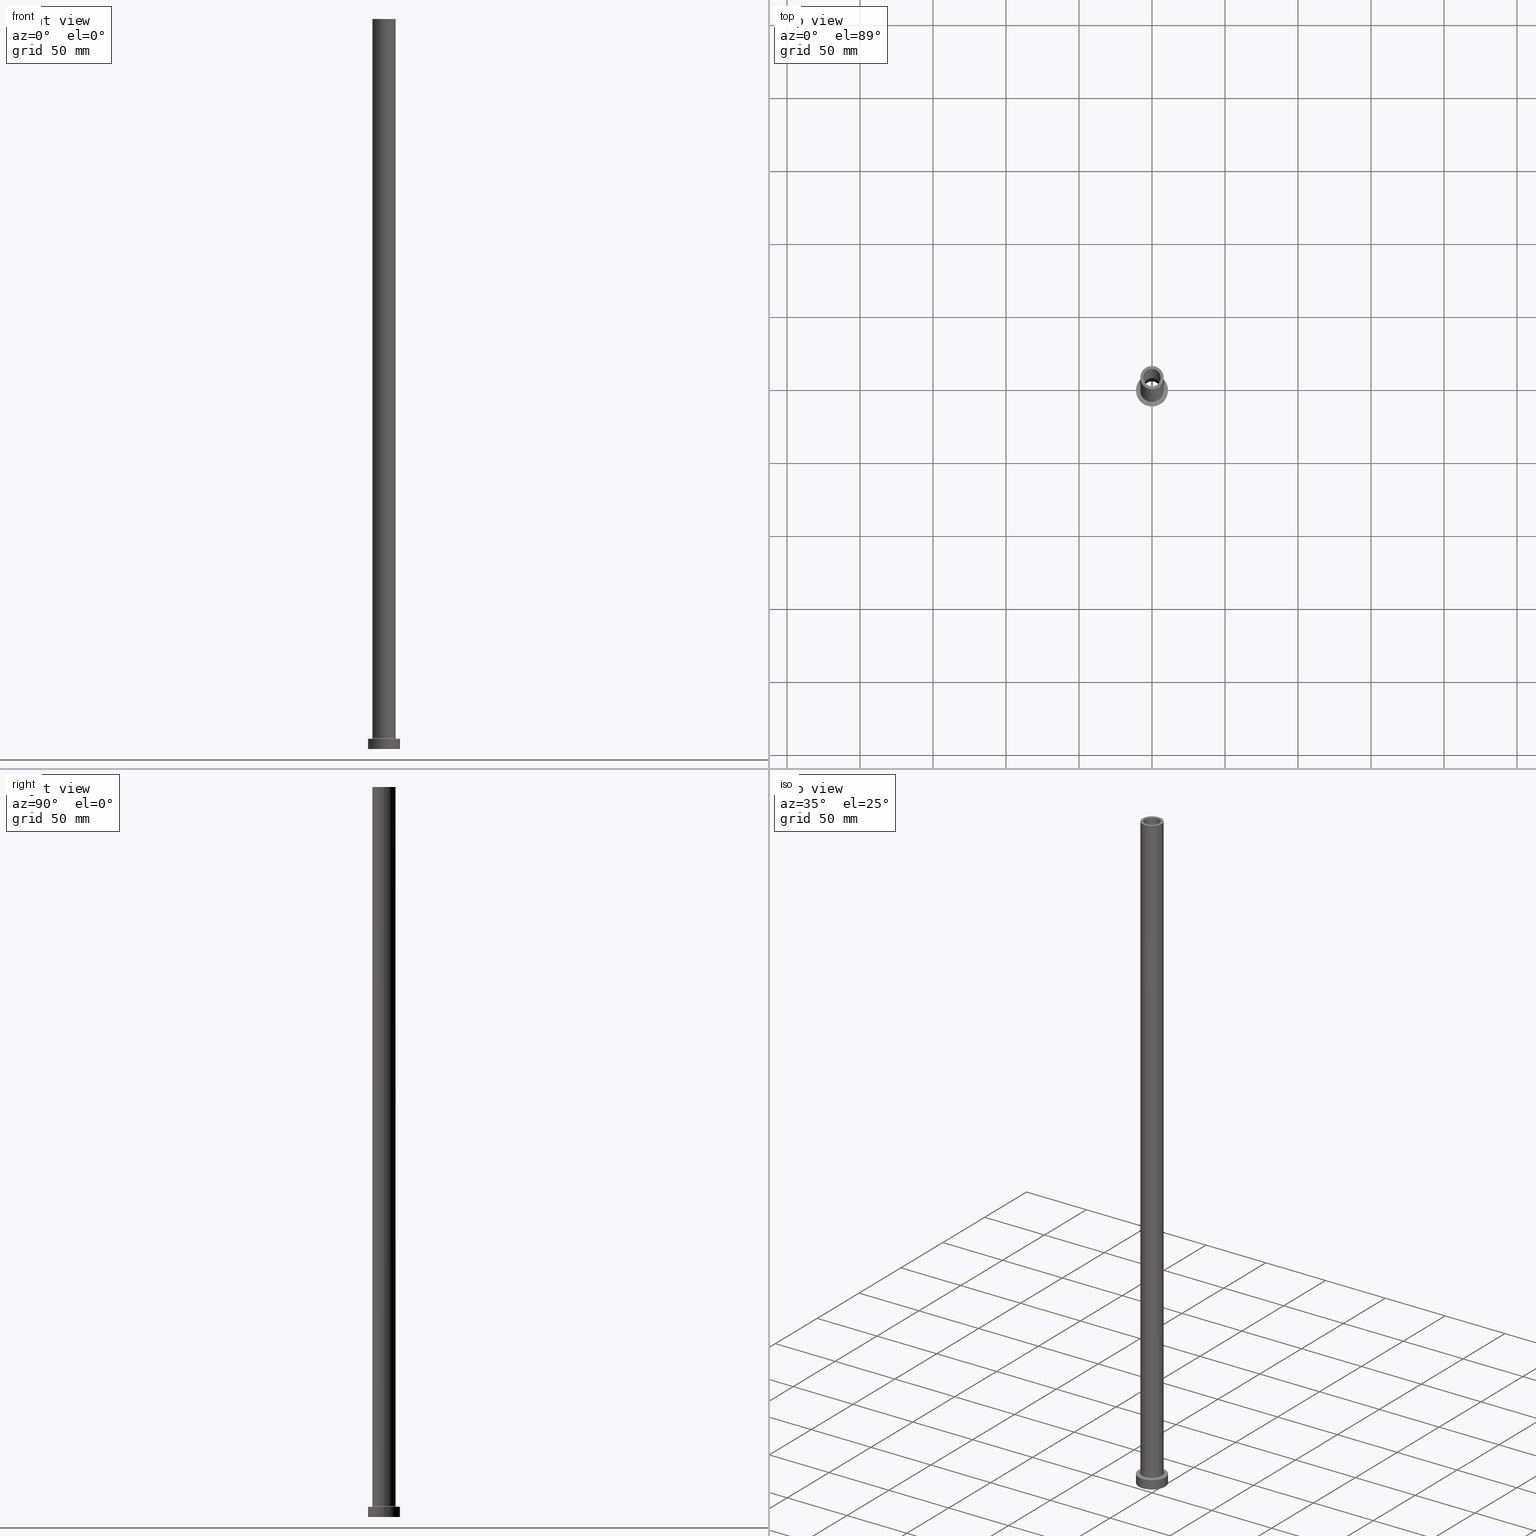
[diagram: canonical four-view strip — front | top / right | iso, engineering-drawing reading convention]
A machine part, canonical four-view strip (front | top / right | iso — engineering-drawing reading convention). The complete STEP part file that produces these views, byte-faithful:
ISO-10303-21;
HEADER;
FILE_DESCRIPTION (( 'STEP AP203' ),
    '1' );
FILE_NAME ('58ea.STEP',
    '2023-02-13T09:06:05',
    ( '' ),
    ( '' ),
    'SwSTEP 2.0',
    'SolidWorks 2019',
    '' );
FILE_SCHEMA (( 'CONFIG_CONTROL_DESIGN' ));
ENDSEC;

DATA;
#1 = AXIS2_PLACEMENT_3D ( 'NONE', #447, #440, #263 ) ;
#2 = CYLINDRICAL_SURFACE ( 'NONE', #149, 6.150000000000000355 ) ;
#3 = CARTESIAN_POINT ( 'NONE',  ( 0.000000000000000000, 0.000000000000000000, 500.0000000000000000 ) ) ;
#4 = EDGE_CURVE ( 'NONE', #356, #103, #33, .T. ) ;
#5 = DIRECTION ( 'NONE',  ( 0.000000000000000000, 0.000000000000000000, 1.000000000000000000 ) ) ;
#6 = APPROVAL_PERSON_ORGANIZATION ( #81, #366, #358 ) ;
#7 = ADVANCED_FACE ( 'NONE', ( #408 ), #86, .T. ) ;
#8 = ORIENTED_EDGE ( 'NONE', *, *, #193, .F. ) ;
#9 = CARTESIAN_POINT ( 'NONE',  ( -6.150000000000000355, 0.000000000000000000, 0.000000000000000000 ) ) ;
#10 = ORIENTED_EDGE ( 'NONE', *, *, #311, .T. ) ;
#11 = PERSON_AND_ORGANIZATION ( #200, #354 ) ;
#12 = DIRECTION ( 'NONE',  ( 1.000000000000000000, 0.000000000000000000, 0.000000000000000000 ) ) ;
#13 = APPROVAL_ROLE ( '' ) ;
#14 = AXIS2_PLACEMENT_3D ( 'NONE', #229, #370, #59 ) ;
#15 = DIRECTION ( 'NONE',  ( -1.000000000000000000, 0.000000000000000000, 0.000000000000000000 ) ) ;
#16 = CC_DESIGN_PERSON_AND_ORGANIZATION_ASSIGNMENT ( #52, #183, ( #261 ) ) ;
#17 = CALENDAR_DATE ( 2023, 13, 2 ) ;
#18 = ORIENTED_EDGE ( 'NONE', *, *, #32, .T. ) ;
#19 = FACE_BOUND ( 'NONE', #79, .T. ) ;
#20 = CIRCLE ( 'NONE', #339, 0.6999999999999992895 ) ;
#21 = ORIENTED_EDGE ( 'NONE', *, *, #56, .T. ) ;
#22 = VERTEX_POINT ( 'NONE', #190 ) ;
#23 = AXIS2_PLACEMENT_3D ( 'NONE', #163, #60, #450 ) ;
#24 = ORIENTED_EDGE ( 'NONE', *, *, #31, .T. ) ;
#25 = CIRCLE ( 'NONE', #89, 6.000000000000000888 ) ;
#26 = CARTESIAN_POINT ( 'NONE',  ( 0.000000000000000000, 0.000000000000000000, 500.0000000000000000 ) ) ;
#27 = DIRECTION ( 'NONE',  ( 0.000000000000000000, 0.000000000000000000, 1.000000000000000000 ) ) ;
#28 = DIRECTION ( 'NONE',  ( -1.000000000000000000, 0.000000000000000000, 0.000000000000000000 ) ) ;
#29 = ORIENTED_EDGE ( 'NONE', *, *, #139, .F. ) ;
#30 = CARTESIAN_POINT ( 'NONE',  ( -11.00000000000000000, 0.000000000000000000, 7.000000000000000000 ) ) ;
#31 = EDGE_CURVE ( 'NONE', #159, #256, #413, .T. ) ;
#32 = EDGE_CURVE ( 'NONE', #256, #159, #70, .T. ) ;
#33 = CIRCLE ( 'NONE', #295, 11.00000000000000000 ) ;
#34 = CIRCLE ( 'NONE', #288, 6.150000000000000355 ) ;
#35 = FACE_OUTER_BOUND ( 'NONE', #180, .T. ) ;
#36 = CYLINDRICAL_SURFACE ( 'NONE', #50, 6.000000000000000888 ) ;
#37 = APPROVAL_PERSON_ORGANIZATION ( #350, #161, #153 ) ;
#38 = DIRECTION ( 'NONE',  ( 1.000000000000000000, 0.000000000000000000, 0.000000000000000000 ) ) ;
#39 = DIRECTION ( 'NONE',  ( 0.000000000000000000, 0.000000000000000000, 1.000000000000000000 ) ) ;
#40 = CARTESIAN_POINT ( 'NONE',  ( 0.000000000000000000, 0.000000000000000000, 0.000000000000000000 ) ) ;
#41 = EDGE_LOOP ( 'NONE', ( #211, #456, #272, #61 ) ) ;
#42 = EDGE_CURVE ( 'NONE', #280, #347, #181, .T. ) ;
#43 = CALENDAR_DATE ( 2023, 13, 2 ) ;
#44 = CARTESIAN_POINT ( 'NONE',  ( 0.000000000000000000, 0.000000000000000000, 7.000000000000000000 ) ) ;
#45 = ORIENTED_EDGE ( 'NONE', *, *, #357, .F. ) ;
#46 = PERSON_AND_ORGANIZATION ( #200, #354 ) ;
#47 = PERSON_AND_ORGANIZATION_ROLE ( 'classification_officer' ) ;
#48 = PERSON_AND_ORGANIZATION_ROLE ( 'creator' ) ;
#49 = ORIENTED_EDGE ( 'NONE', *, *, #459, .T. ) ;
#50 = AXIS2_PLACEMENT_3D ( 'NONE', #3, #313, #461 ) ;
#51 = DIRECTION ( 'NONE',  ( 0.000000000000000000, 0.000000000000000000, 1.000000000000000000 ) ) ;
#52 = PERSON_AND_ORGANIZATION ( #200, #354 ) ;
#53 = CARTESIAN_POINT ( 'NONE',  ( -8.000000000000000000, 0.000000000000000000, 500.0000000000000000 ) ) ;
#54 = CARTESIAN_POINT ( 'NONE',  ( 11.00000000000000000, 1.347111479062088405E-15, 0.000000000000000000 ) ) ;
#55 = EDGE_CURVE ( 'NONE', #159, #269, #121, .T. ) ;
#56 = EDGE_CURVE ( 'NONE', #63, #279, #223, .T. ) ;
#57 = DIRECTION ( 'NONE',  ( 0.000000000000000000, -1.000000000000000000, 0.000000000000000000 ) ) ;
#58 = AXIS2_PLACEMENT_3D ( 'NONE', #407, #57, #62 ) ;
#59 = DIRECTION ( 'NONE',  ( -1.000000000000000000, 0.000000000000000000, 0.000000000000000000 ) ) ;
#60 = DIRECTION ( 'NONE',  ( 0.000000000000000000, 0.000000000000000000, 1.000000000000000000 ) ) ;
#61 = ORIENTED_EDGE ( 'NONE', *, *, #193, .T. ) ;
#62 = DIRECTION ( 'NONE',  ( 0.000000000000000000, 0.000000000000000000, -1.000000000000000000 ) ) ;
#63 = VERTEX_POINT ( 'NONE', #88 ) ;
#64 = CARTESIAN_POINT ( 'NONE',  ( 6.000000000000000888, 7.347880794884119736E-16, 500.0000000000000000 ) ) ;
#65 = CARTESIAN_POINT ( 'NONE',  ( 0.000000000000000000, 0.000000000000000000, 0.000000000000000000 ) ) ;
#66 = DIRECTION ( 'NONE',  ( -0.000000000000000000, -0.000000000000000000, -1.000000000000000000 ) ) ;
#67 = ORIENTED_EDGE ( 'NONE', *, *, #55, .F. ) ;
#68 = CARTESIAN_POINT ( 'NONE',  ( 0.000000000000000000, 0.000000000000000000, 500.0000000000000000 ) ) ;
#69 = CARTESIAN_POINT ( 'NONE',  ( 0.000000000000000000, 0.000000000000000000, 7.000000000000000000 ) ) ;
#70 = CIRCLE ( 'NONE', #195, 8.000000000000000000 ) ;
#71 = AXIS2_PLACEMENT_3D ( 'NONE', #420, #270, #28 ) ;
#72 = AXIS2_PLACEMENT_3D ( 'NONE', #207, #185, #367 ) ;
#73 = ADVANCED_FACE ( 'NONE', ( #417, #405 ), #231, .F. ) ;
#74 = DIRECTION ( 'NONE',  ( 0.000000000000000000, 0.000000000000000000, 1.000000000000000000 ) ) ;
#75 =( NAMED_UNIT ( * ) PLANE_ANGLE_UNIT ( ) SI_UNIT ( $, .RADIAN. ) );
#76 = ORIENTED_EDGE ( 'NONE', *, *, #409, .T. ) ;
#77 = CLOSED_SHELL ( 'NONE', ( #325, #116, #184, #251, #226, #314, #307, #460, #7, #115, #101, #124, #73, #96 ) ) ;
#78 = APPROVAL_DATE_TIME ( #302, #161 ) ;
#79 = EDGE_LOOP ( 'NONE', ( #76, #108 ) ) ;
#80 = DIRECTION ( 'NONE',  ( 1.000000000000000000, 0.000000000000000000, -0.000000000000000000 ) ) ;
#81 = PERSON_AND_ORGANIZATION ( #200, #354 ) ;
#82 = EDGE_CURVE ( 'NONE', #269, #199, #202, .T. ) ;
#83 = EDGE_CURVE ( 'NONE', #279, #63, #25, .T. ) ;
#84 = COORDINATED_UNIVERSAL_TIME_OFFSET ( 1, 0, .AHEAD. ) ;
#85 = CIRCLE ( 'NONE', #331, 6.150000000000000355 ) ;
#86 = CYLINDRICAL_SURFACE ( 'NONE', #14, 8.000000000000000000 ) ;
#87 = PRODUCT_DEFINITION_SHAPE ( 'NONE', 'NONE',  #346 ) ;
#88 = CARTESIAN_POINT ( 'NONE',  ( 6.000000000000000888, 7.347880794884119736E-16, 500.0000000000000000 ) ) ;
#89 = AXIS2_PLACEMENT_3D ( 'NONE', #26, #318, #379 ) ;
#90 = PLANE ( 'NONE',  #364 ) ;
#91 = LOCAL_TIME ( 10, 6, 5.000000000000000000, #117 ) ;
#92 = ORIENTED_EDGE ( 'NONE', *, *, #416, .F. ) ;
#93 = EDGE_LOOP ( 'NONE', ( #174, #351 ) ) ;
#94 = CARTESIAN_POINT ( 'NONE',  ( 0.000000000000000000, 0.000000000000000000, 455.0000000000000000 ) ) ;
#95 = ORIENTED_EDGE ( 'NONE', *, *, #83, .T. ) ;
#96 = ADVANCED_FACE ( 'NONE', ( #201 ), #36, .F. ) ;
#97 = AXIS2_PLACEMENT_3D ( 'NONE', #98, #135, #38 ) ;
#98 = CARTESIAN_POINT ( 'NONE',  ( 0.000000000000000000, 0.000000000000000000, 0.000000000000000000 ) ) ;
#99 = CARTESIAN_POINT ( 'NONE',  ( 6.150000000000000355, 7.531577814756222064E-16, 472.3948268171890845 ) ) ;
#100 = DIRECTION ( 'NONE',  ( 1.000000000000000000, 0.000000000000000000, 0.000000000000000000 ) ) ;
#101 = ADVANCED_FACE ( 'NONE', ( #138 ), #310, .F. ) ;
#102 = CARTESIAN_POINT ( 'NONE',  ( -6.000000000000000888, 0.000000000000000000, 500.0000000000000000 ) ) ;
#103 = VERTEX_POINT ( 'NONE', #317 ) ;
#104 = EDGE_CURVE ( 'NONE', #63, #347, #422, .T. ) ;
#105 = AXIS2_PLACEMENT_3D ( 'NONE', #337, #236, #334 ) ;
#106 = DIRECTION ( 'NONE',  ( 1.000000000000000000, 0.000000000000000000, 0.000000000000000000 ) ) ;
#107 =( NAMED_UNIT ( * ) SI_UNIT ( $, .STERADIAN. ) SOLID_ANGLE_UNIT ( ) );
#108 = ORIENTED_EDGE ( 'NONE', *, *, #416, .T. ) ;
#109 = AXIS2_PLACEMENT_3D ( 'NONE', #65, #39, #423 ) ;
#110 = FACE_OUTER_BOUND ( 'NONE', #419, .T. ) ;
#111 = CALENDAR_DATE ( 2023, 13, 2 ) ;
#112 = PLANE ( 'NONE',  #224 ) ;
#113 = DIRECTION ( 'NONE',  ( 1.000000000000000000, 0.000000000000000000, 0.000000000000000000 ) ) ;
#114 = APPLICATION_PROTOCOL_DEFINITION ( 'international standard', 'config_control_design', 1994, #341 ) ;
#115 = ADVANCED_FACE ( 'NONE', ( #390, #442 ), #112, .T. ) ;
#116 = ADVANCED_FACE ( 'NONE', ( #266 ), #415, .F. ) ;
#117 = COORDINATED_UNIVERSAL_TIME_OFFSET ( 1, 0, .AHEAD. ) ;
#118 = CIRCLE ( 'NONE', #109, 11.00000000000000000 ) ;
#119 = DIRECTION ( 'NONE',  ( 0.000000000000000000, 0.000000000000000000, 1.000000000000000000 ) ) ;
#120 = EDGE_LOOP ( 'NONE', ( #198, #294, #303, #239 ) ) ;
#121 = LINE ( 'NONE', #411, #363 ) ;
#122 = EDGE_LOOP ( 'NONE', ( #291, #21, #338, #387 ) ) ;
#123 = FACE_OUTER_BOUND ( 'NONE', #120, .T. ) ;
#124 = ADVANCED_FACE ( 'NONE', ( #128 ), #2, .F. ) ;
#125 = CIRCLE ( 'NONE', #404, 11.00000000000000000 ) ;
#126 = ORIENTED_EDGE ( 'NONE', *, *, #4, .F. ) ;
#127 = ORIENTED_EDGE ( 'NONE', *, *, #233, .T. ) ;
#128 = FACE_OUTER_BOUND ( 'NONE', #41, .T. ) ;
#129 = EDGE_CURVE ( 'NONE', #22, #191, #444, .T. ) ;
#130 = ORIENTED_EDGE ( 'NONE', *, *, #83, .F. ) ;
#131 = CARTESIAN_POINT ( 'NONE',  ( -6.000000000000000888, 0.000000000000000000, 500.0000000000000000 ) ) ;
#132 = CARTESIAN_POINT ( 'NONE',  ( 0.000000000000000000, 0.000000000000000000, 7.699999999999985079 ) ) ;
#133 = CIRCLE ( 'NONE', #105, 6.000000000000000888 ) ;
#134 = LOCAL_TIME ( 10, 6, 5.000000000000000000, #84 ) ;
#135 = DIRECTION ( 'NONE',  ( -0.000000000000000000, -0.000000000000000000, -1.000000000000000000 ) ) ;
#136 = DESIGN_CONTEXT ( 'detailed design', #401, 'design' ) ;
#137 = DIRECTION ( 'NONE',  ( 1.000000000000000000, 0.000000000000000000, 0.000000000000000000 ) ) ;
#138 = FACE_OUTER_BOUND ( 'NONE', #286, .T. ) ;
#139 = EDGE_CURVE ( 'NONE', #383, #345, #118, .T. ) ;
#140 = DIRECTION ( 'NONE',  ( 1.224646799147353207E-16, 1.000000000000000000, -0.000000000000000000 ) ) ;
#141 = AXIS2_PLACEMENT_3D ( 'NONE', #227, #215, #203 ) ;
#142 = CARTESIAN_POINT ( 'NONE',  ( 8.000000000000000000, 9.797174393178825657E-16, 7.699999999999985079 ) ) ;
#143 = DIRECTION ( 'NONE',  ( -0.000000000000000000, -0.000000000000000000, -1.000000000000000000 ) ) ;
#144 = CC_DESIGN_PERSON_AND_ORGANIZATION_ASSIGNMENT ( #186, #445, ( #346 ) ) ;
#145 = CALENDAR_DATE ( 2023, 13, 2 ) ;
#146 = EDGE_LOOP ( 'NONE', ( #67, #377, #235, #381 ) ) ;
#147 = DIRECTION ( 'NONE',  ( 0.000000000000000000, 0.000000000000000000, 1.000000000000000000 ) ) ;
#148 = DIRECTION ( 'NONE',  ( 0.000000000000000000, 0.000000000000000000, 1.000000000000000000 ) ) ;
#149 = AXIS2_PLACEMENT_3D ( 'NONE', #264, #268, #301 ) ;
#150 = MECHANICAL_CONTEXT ( 'NONE', #341, 'mechanical' ) ;
#151 = DIRECTION ( 'NONE',  ( 0.000000000000000000, 0.000000000000000000, -1.000000000000000000 ) ) ;
#152 =( LENGTH_UNIT ( ) NAMED_UNIT ( * ) SI_UNIT ( .MILLI., .METRE. ) );
#153 = APPROVAL_ROLE ( '' ) ;
#154 = PRODUCT_RELATED_PRODUCT_CATEGORY ( 'detail', '', ( #271 ) ) ;
#155 = LINE ( 'NONE', #53, #438 ) ;
#156 = CYLINDRICAL_SURFACE ( 'NONE', #71, 11.00000000000000000 ) ;
#157 = EDGE_CURVE ( 'NONE', #356, #383, #290, .T. ) ;
#158 = APPROVAL_STATUS ( 'not_yet_approved' ) ;
#159 = VERTEX_POINT ( 'NONE', #343 ) ;
#160 = AXIS2_PLACEMENT_3D ( 'NONE', #458, #194, #278 ) ;
#161 = APPROVAL ( #324, 'NEUR�EN�' ) ;
#162 = ORIENTED_EDGE ( 'NONE', *, *, #392, .T. ) ;
#163 = CARTESIAN_POINT ( 'NONE',  ( 0.000000000000000000, 0.000000000000000000, 500.0000000000000000 ) ) ;
#164 = AXIS2_PLACEMENT_3D ( 'NONE', #132, #282, #100 ) ;
#165 = ORIENTED_EDGE ( 'NONE', *, *, #167, .F. ) ;
#166 = CC_DESIGN_DATE_AND_TIME_ASSIGNMENT ( #441, #434, ( #346 ) ) ;
#167 = EDGE_CURVE ( 'NONE', #260, #269, #414, .T. ) ;
#168 = CIRCLE ( 'NONE', #457, 6.150000000000000355 ) ;
#169 = CARTESIAN_POINT ( 'NONE',  ( 0.000000000000000000, 0.000000000000000000, 455.0000000000000000 ) ) ;
#170 = CARTESIAN_POINT ( 'NONE',  ( 0.000000000000000000, 0.000000000000000000, 0.000000000000000000 ) ) ;
#171 = DIRECTION ( 'NONE',  ( 0.000000000000000000, 0.000000000000000000, 1.000000000000000000 ) ) ;
#172 = APPROVAL ( #262, 'NEUR�EN�' ) ;
#173 = EDGE_LOOP ( 'NONE', ( #253, #10, #340, #406 ) ) ;
#174 = ORIENTED_EDGE ( 'NONE', *, *, #332, .F. ) ;
#175 = CARTESIAN_POINT ( 'NONE',  ( 0.000000000000000000, 0.000000000000000000, 7.699999999999985079 ) ) ;
#176 = EDGE_LOOP ( 'NONE', ( #130, #335 ) ) ;
#177 = DATE_TIME_ROLE ( 'classification_date' ) ;
#178 = CYLINDRICAL_SURFACE ( 'NONE', #1, 11.00000000000000000 ) ;
#179 = APPROVAL_DATE_TIME ( #265, #172 ) ;
#180 = EDGE_LOOP ( 'NONE', ( #29, #205 ) ) ;
#181 = CIRCLE ( 'NONE', #309, 6.000000000000000888 ) ;
#182 = AXIS2_PLACEMENT_3D ( 'NONE', #389, #322, #244 ) ;
#183 = PERSON_AND_ORGANIZATION_ROLE ( 'design_supplier' ) ;
#184 = ADVANCED_FACE ( 'NONE', ( #424 ), #371, .F. ) ;
#185 = DIRECTION ( 'NONE',  ( 0.000000000000000000, 0.000000000000000000, 1.000000000000000000 ) ) ;
#186 = PERSON_AND_ORGANIZATION ( #200, #354 ) ;
#187 = ORIENTED_EDGE ( 'NONE', *, *, #433, .F. ) ;
#188 = AXIS2_PLACEMENT_3D ( 'NONE', #175, #208, #254 ) ;
#189 = CC_DESIGN_APPROVAL ( #172, ( #452 ) ) ;
#190 = CARTESIAN_POINT ( 'NONE',  ( -6.150000000000000355, 0.000000000000000000, 455.0000000000000000 ) ) ;
#191 = VERTEX_POINT ( 'NONE', #9 ) ;
#192 = VERTEX_POINT ( 'NONE', #285 ) ;
#193 = EDGE_CURVE ( 'NONE', #191, #192, #209, .T. ) ;
#194 = DIRECTION ( 'NONE',  ( 0.000000000000000000, 0.000000000000000000, -1.000000000000000000 ) ) ;
#195 = AXIS2_PLACEMENT_3D ( 'NONE', #403, #398, #360 ) ;
#196 = EDGE_CURVE ( 'NONE', #432, #22, #168, .T. ) ;
#197 = VECTOR ( 'NONE', #248, 1000.000000000000000 ) ;
#198 = ORIENTED_EDGE ( 'NONE', *, *, #31, .F. ) ;
#199 = VERTEX_POINT ( 'NONE', #427 ) ;
#200 = PERSON ( 'NEUR�EN�', 'NEUR�EN�', 'NEUR�EN�', ('NEUR�EN�'), ('NEUR�EN�'), ('NEUR�EN�') ) ;
#201 = FACE_OUTER_BOUND ( 'NONE', #122, .T. ) ;
#202 = CIRCLE ( 'NONE', #58, 0.7000000000000000666 ) ;
#203 = DIRECTION ( 'NONE',  ( 1.000000000000000000, 0.000000000000000000, 0.000000000000000000 ) ) ;
#204 = PLANE ( 'NONE',  #451 ) ;
#205 = ORIENTED_EDGE ( 'NONE', *, *, #418, .F. ) ;
#206 = EDGE_LOOP ( 'NONE', ( #375, #425 ) ) ;
#207 = CARTESIAN_POINT ( 'NONE',  ( 0.000000000000000000, 0.000000000000000000, 0.000000000000000000 ) ) ;
#208 = DIRECTION ( 'NONE',  ( 0.000000000000000000, 0.000000000000000000, 1.000000000000000000 ) ) ;
#209 = CIRCLE ( 'NONE', #97, 6.150000000000000355 ) ;
#210 = DIRECTION ( 'NONE',  ( 0.000000000000000000, 0.000000000000000000, -1.000000000000000000 ) ) ;
#211 = ORIENTED_EDGE ( 'NONE', *, *, #459, .F. ) ;
#212 = ORIENTED_EDGE ( 'NONE', *, *, #42, .T. ) ;
#213 = EDGE_CURVE ( 'NONE', #256, #260, #155, .T. ) ;
#214 = DIRECTION ( 'NONE',  ( -0.000000000000000000, -0.000000000000000000, -1.000000000000000000 ) ) ;
#215 = DIRECTION ( 'NONE',  ( 0.000000000000000000, 0.000000000000000000, 1.000000000000000000 ) ) ;
#216 = PERSON_AND_ORGANIZATION ( #200, #354 ) ;
#217 = DIRECTION ( 'NONE',  ( 1.000000000000000000, 0.000000000000000000, -0.000000000000000000 ) ) ;
#218 = CARTESIAN_POINT ( 'NONE',  ( 0.000000000000000000, 0.000000000000000000, 500.0000000000000000 ) ) ;
#219 = COORDINATED_UNIVERSAL_TIME_OFFSET ( 1, 0, .AHEAD. ) ;
#220 = FACE_OUTER_BOUND ( 'NONE', #173, .T. ) ;
#221 = DIRECTION ( 'NONE',  ( 1.000000000000000000, 0.000000000000000000, -0.000000000000000000 ) ) ;
#222 = CC_DESIGN_DATE_AND_TIME_ASSIGNMENT ( #292, #177, ( #452 ) ) ;
#223 = CIRCLE ( 'NONE', #23, 6.000000000000000888 ) ;
#224 = AXIS2_PLACEMENT_3D ( 'NONE', #400, #74, #221 ) ;
#225 = CYLINDRICAL_SURFACE ( 'NONE', #232, 6.000000000000000888 ) ;
#226 = ADVANCED_FACE ( 'NONE', ( #220 ), #156, .T. ) ;
#227 = CARTESIAN_POINT ( 'NONE',  ( 0.000000000000000000, 0.000000000000000000, 7.699999999999985079 ) ) ;
#228 = CC_DESIGN_PERSON_AND_ORGANIZATION_ASSIGNMENT ( #299, #393, ( #271 ) ) ;
#229 = CARTESIAN_POINT ( 'NONE',  ( 0.000000000000000000, 0.000000000000000000, 500.0000000000000000 ) ) ;
#230 = AXIS2_PLACEMENT_3D ( 'NONE', #44, #245, #319 ) ;
#231 = PLANE ( 'NONE',  #306 ) ;
#232 = AXIS2_PLACEMENT_3D ( 'NONE', #218, #361, #15 ) ;
#233 = EDGE_CURVE ( 'NONE', #347, #280, #133, .T. ) ;
#234 = CARTESIAN_POINT ( 'NONE',  ( 0.000000000000000000, 0.000000000000000000, 7.000000000000000000 ) ) ;
#235 = ORIENTED_EDGE ( 'NONE', *, *, #213, .T. ) ;
#236 = DIRECTION ( 'NONE',  ( 0.000000000000000000, 0.000000000000000000, 1.000000000000000000 ) ) ;
#237 = DIRECTION ( 'NONE',  ( -0.000000000000000000, -0.000000000000000000, -1.000000000000000000 ) ) ;
#238 = EDGE_CURVE ( 'NONE', #103, #356, #353, .T. ) ;
#239 = ORIENTED_EDGE ( 'NONE', *, *, #213, .F. ) ;
#240 = DIRECTION ( 'NONE',  ( 1.000000000000000000, 0.000000000000000000, -0.000000000000000000 ) ) ;
#241 = EDGE_LOOP ( 'NONE', ( #8, #45 ) ) ;
#242 = ORIENTED_EDGE ( 'NONE', *, *, #332, .T. ) ;
#243 = VECTOR ( 'NONE', #323, 1000.000000000000000 ) ;
#244 = DIRECTION ( 'NONE',  ( 1.000000000000000000, 0.000000000000000000, 0.000000000000000000 ) ) ;
#245 = DIRECTION ( 'NONE',  ( -0.000000000000000000, -0.000000000000000000, -1.000000000000000000 ) ) ;
#246 = DIRECTION ( 'NONE',  ( -0.000000000000000000, -0.000000000000000000, -1.000000000000000000 ) ) ;
#247 = CIRCLE ( 'NONE', #297, 8.699999999999999289 ) ;
#248 = DIRECTION ( 'NONE',  ( 0.000000000000000000, 0.000000000000000000, -1.000000000000000000 ) ) ;
#249 = CARTESIAN_POINT ( 'NONE',  ( -8.000000000000000000, 0.000000000000000000, 7.699999999999985079 ) ) ;
#250 = ORIENTED_EDGE ( 'NONE', *, *, #311, .F. ) ;
#251 = ADVANCED_FACE ( 'NONE', ( #123 ), #374, .T. ) ;
#252 = EDGE_LOOP ( 'NONE', ( #212, #127 ) ) ;
#253 = ORIENTED_EDGE ( 'NONE', *, *, #238, .F. ) ;
#254 = DIRECTION ( 'NONE',  ( 1.000000000000000000, 0.000000000000000000, 0.000000000000000000 ) ) ;
#255 = DIRECTION ( 'NONE',  ( -0.000000000000000000, -0.000000000000000000, -1.000000000000000000 ) ) ;
#256 = VERTEX_POINT ( 'NONE', #348 ) ;
#257 = CARTESIAN_POINT ( 'NONE',  ( -6.150000000000000355, 0.000000000000000000, 472.3948268171890845 ) ) ;
#258 = APPLICATION_PROTOCOL_DEFINITION ( 'international standard', 'config_control_design', 1994, #401 ) ;
#259 = AXIS2_PLACEMENT_3D ( 'NONE', #410, #372, #455 ) ;
#260 = VERTEX_POINT ( 'NONE', #249 ) ;
#261 = PRODUCT_DEFINITION_FORMATION_WITH_SPECIFIED_SOURCE ( 'LIBOVOLN�', '', #271, .NOT_KNOWN. ) ;
#262 = APPROVAL_STATUS ( 'not_yet_approved' ) ;
#263 = DIRECTION ( 'NONE',  ( -1.000000000000000000, 0.000000000000000000, 0.000000000000000000 ) ) ;
#264 = CARTESIAN_POINT ( 'NONE',  ( 0.000000000000000000, 0.000000000000000000, 472.3948268171890845 ) ) ;
#265 = DATE_AND_TIME ( #145, #344 ) ;
#266 = FACE_OUTER_BOUND ( 'NONE', #276, .T. ) ;
#267 = FACE_OUTER_BOUND ( 'NONE', #277, .T. ) ;
#268 = DIRECTION ( 'NONE',  ( 0.000000000000000000, 0.000000000000000000, -1.000000000000000000 ) ) ;
#269 = VERTEX_POINT ( 'NONE', #142 ) ;
#270 = DIRECTION ( 'NONE',  ( -0.000000000000000000, -0.000000000000000000, -1.000000000000000000 ) ) ;
#271 = PRODUCT ( '58ea', '58ea', '', ( #150 ) ) ;
#272 = ORIENTED_EDGE ( 'NONE', *, *, #129, .T. ) ;
#273 = AXIS2_PLACEMENT_3D ( 'NONE', #333, #147, #439 ) ;
#274 = VECTOR ( 'NONE', #210, 1000.000000000000000 ) ;
#275 = LOCAL_TIME ( 10, 6, 5.000000000000000000, #362 ) ;
#276 = EDGE_LOOP ( 'NONE', ( #242, #49, #453, #402 ) ) ;
#277 = EDGE_LOOP ( 'NONE', ( #95, #281, #394, #359 ) ) ;
#278 = DIRECTION ( 'NONE',  ( -1.000000000000000000, 0.000000000000000000, 0.000000000000000000 ) ) ;
#279 = VERTEX_POINT ( 'NONE', #131 ) ;
#280 = VERTEX_POINT ( 'NONE', #304 ) ;
#281 = ORIENTED_EDGE ( 'NONE', *, *, #104, .T. ) ;
#282 = DIRECTION ( 'NONE',  ( 0.000000000000000000, 0.000000000000000000, 1.000000000000000000 ) ) ;
#283 = CIRCLE ( 'NONE', #230, 8.699999999999999289 ) ;
#284 = CARTESIAN_POINT ( 'NONE',  ( -8.699999999999999289, 1.065442715258197248E-15, 7.699999999999985079 ) ) ;
#285 = CARTESIAN_POINT ( 'NONE',  ( 6.150000000000000355, 7.531577814756222064E-16, 0.000000000000000000 ) ) ;
#286 = EDGE_LOOP ( 'NONE', ( #446, #187, #349, #92 ) ) ;
#287 = CC_DESIGN_PERSON_AND_ORGANIZATION_ASSIGNMENT ( #11, #47, ( #452 ) ) ;
#288 = AXIS2_PLACEMENT_3D ( 'NONE', #369, #443, #113 ) ;
#289 = LINE ( 'NONE', #99, #197 ) ;
#290 = LINE ( 'NONE', #30, #429 ) ;
#291 = ORIENTED_EDGE ( 'NONE', *, *, #104, .F. ) ;
#292 = DATE_AND_TIME ( #111, #134 ) ;
#293 = SHAPE_DEFINITION_REPRESENTATION ( #87, #336 ) ;
#294 = ORIENTED_EDGE ( 'NONE', *, *, #55, .T. ) ;
#295 = AXIS2_PLACEMENT_3D ( 'NONE', #421, #27, #308 ) ;
#296 = DIRECTION ( 'NONE',  ( 0.000000000000000000, 0.000000000000000000, 1.000000000000000000 ) ) ;
#297 = AXIS2_PLACEMENT_3D ( 'NONE', #69, #66, #388 ) ;
#298 = LINE ( 'NONE', #300, #327 ) ;
#299 = PERSON_AND_ORGANIZATION ( #200, #354 ) ;
#300 = CARTESIAN_POINT ( 'NONE',  ( 11.00000000000000000, 1.347111479062088405E-15, 7.000000000000000000 ) ) ;
#301 = DIRECTION ( 'NONE',  ( -1.000000000000000000, 0.000000000000000000, 0.000000000000000000 ) ) ;
#302 = DATE_AND_TIME ( #17, #275 ) ;
#303 = ORIENTED_EDGE ( 'NONE', *, *, #433, .T. ) ;
#304 = CARTESIAN_POINT ( 'NONE',  ( -6.000000000000000888, 0.000000000000000000, 455.0000000000000000 ) ) ;
#305 = CARTESIAN_POINT ( 'NONE',  ( 6.150000000000000355, 7.531577814756222064E-16, 455.0000000000000000 ) ) ;
#306 = AXIS2_PLACEMENT_3D ( 'NONE', #94, #119, #240 ) ;
#307 = ADVANCED_FACE ( 'NONE', ( #19, #412 ), #90, .T. ) ;
#308 = DIRECTION ( 'NONE',  ( 1.000000000000000000, 0.000000000000000000, 0.000000000000000000 ) ) ;
#309 = AXIS2_PLACEMENT_3D ( 'NONE', #326, #171, #12 ) ;
#310 = TOROIDAL_SURFACE ( 'NONE', #164, 8.699999999999999289, 0.6999999999999999556 ) ;
#311 = EDGE_CURVE ( 'NONE', #103, #345, #298, .T. ) ;
#312 = VERTEX_POINT ( 'NONE', #328 ) ;
#313 = DIRECTION ( 'NONE',  ( 0.000000000000000000, 0.000000000000000000, -1.000000000000000000 ) ) ;
#314 = ADVANCED_FACE ( 'NONE', ( #110 ), #178, .T. ) ;
#315 = VECTOR ( 'NONE', #151, 1000.000000000000000 ) ;
#316 = LINE ( 'NONE', #102, #243 ) ;
#317 = CARTESIAN_POINT ( 'NONE',  ( 11.00000000000000000, 1.347111479062088405E-15, 7.000000000000000000 ) ) ;
#318 = DIRECTION ( 'NONE',  ( 0.000000000000000000, 0.000000000000000000, 1.000000000000000000 ) ) ;
#319 = DIRECTION ( 'NONE',  ( 1.000000000000000000, 0.000000000000000000, 0.000000000000000000 ) ) ;
#320 = ORIENTED_EDGE ( 'NONE', *, *, #409, .F. ) ;
#321 = EDGE_LOOP ( 'NONE', ( #165, #162, #320, #454 ) ) ;
#322 = DIRECTION ( 'NONE',  ( 0.000000000000000000, 0.000000000000000000, 1.000000000000000000 ) ) ;
#323 = DIRECTION ( 'NONE',  ( 0.000000000000000000, 0.000000000000000000, -1.000000000000000000 ) ) ;
#324 = APPROVAL_STATUS ( 'not_yet_approved' ) ;
#325 = ADVANCED_FACE ( 'NONE', ( #267 ), #225, .F. ) ;
#326 = CARTESIAN_POINT ( 'NONE',  ( 0.000000000000000000, 0.000000000000000000, 455.0000000000000000 ) ) ;
#327 = VECTOR ( 'NONE', #214, 1000.000000000000000 ) ;
#328 = CARTESIAN_POINT ( 'NONE',  ( -8.699999999999999289, 1.065442715258197248E-15, 6.999999999999992006 ) ) ;
#329 = DIRECTION ( 'NONE',  ( 1.000000000000000000, 0.000000000000000000, 0.000000000000000000 ) ) ;
#330 = DIRECTION ( 'NONE',  ( -0.000000000000000000, -0.000000000000000000, -1.000000000000000000 ) ) ;
#331 = AXIS2_PLACEMENT_3D ( 'NONE', #170, #255, #106 ) ;
#332 = EDGE_CURVE ( 'NONE', #22, #432, #34, .T. ) ;
#333 = CARTESIAN_POINT ( 'NONE',  ( 0.000000000000000000, 0.000000000000000000, 500.0000000000000000 ) ) ;
#334 = DIRECTION ( 'NONE',  ( 1.000000000000000000, 0.000000000000000000, 0.000000000000000000 ) ) ;
#335 = ORIENTED_EDGE ( 'NONE', *, *, #56, .F. ) ;
#336 = ADVANCED_BREP_SHAPE_REPRESENTATION ( '58ea', ( #435, #72 ), #378 ) ;
#337 = CARTESIAN_POINT ( 'NONE',  ( 0.000000000000000000, 0.000000000000000000, 455.0000000000000000 ) ) ;
#338 = ORIENTED_EDGE ( 'NONE', *, *, #368, .T. ) ;
#339 = AXIS2_PLACEMENT_3D ( 'NONE', #284, #140, #385 ) ;
#340 = ORIENTED_EDGE ( 'NONE', *, *, #418, .T. ) ;
#341 = APPLICATION_CONTEXT ( 'configuration controlled 3d designs of mechanical parts and assemblies' ) ;
#342 = CARTESIAN_POINT ( 'NONE',  ( -11.00000000000000000, 0.000000000000000000, 7.000000000000000000 ) ) ;
#343 = CARTESIAN_POINT ( 'NONE',  ( 8.000000000000000000, 9.797174393178825657E-16, 500.0000000000000000 ) ) ;
#344 = LOCAL_TIME ( 10, 6, 5.000000000000000000, #219 ) ;
#345 = VERTEX_POINT ( 'NONE', #54 ) ;
#346 = PRODUCT_DEFINITION ( 'NEZN�M�', '', #261, #136 ) ;
#347 = VERTEX_POINT ( 'NONE', #376 ) ;
#348 = CARTESIAN_POINT ( 'NONE',  ( -8.000000000000000000, 0.000000000000000000, 500.0000000000000000 ) ) ;
#349 = ORIENTED_EDGE ( 'NONE', *, *, #82, .T. ) ;
#350 = PERSON_AND_ORGANIZATION ( #200, #354 ) ;
#351 = ORIENTED_EDGE ( 'NONE', *, *, #196, .F. ) ;
#352 = CARTESIAN_POINT ( 'NONE',  ( 0.000000000000000000, 0.000000000000000000, 0.000000000000000000 ) ) ;
#353 = CIRCLE ( 'NONE', #259, 11.00000000000000000 ) ;
#354 = ORGANIZATION ( 'NEUR�EN�', 'NEUR�EN�', '' ) ;
#355 = COORDINATED_UNIVERSAL_TIME_OFFSET ( 1, 0, .AHEAD. ) ;
#356 = VERTEX_POINT ( 'NONE', #342 ) ;
#357 = EDGE_CURVE ( 'NONE', #192, #191, #85, .T. ) ;
#358 = APPROVAL_ROLE ( '' ) ;
#359 = ORIENTED_EDGE ( 'NONE', *, *, #368, .F. ) ;
#360 = DIRECTION ( 'NONE',  ( 1.000000000000000000, 0.000000000000000000, 0.000000000000000000 ) ) ;
#361 = DIRECTION ( 'NONE',  ( 0.000000000000000000, 0.000000000000000000, -1.000000000000000000 ) ) ;
#362 = COORDINATED_UNIVERSAL_TIME_OFFSET ( 1, 0, .AHEAD. ) ;
#363 = VECTOR ( 'NONE', #237, 1000.000000000000000 ) ;
#364 = AXIS2_PLACEMENT_3D ( 'NONE', #234, #148, #80 ) ;
#365 = CC_DESIGN_APPROVAL ( #366, ( #261 ) ) ;
#366 = APPROVAL ( #158, 'NEUR�EN�' ) ;
#367 = DIRECTION ( 'NONE',  ( 1.000000000000000000, 0.000000000000000000, 0.000000000000000000 ) ) ;
#368 = EDGE_CURVE ( 'NONE', #279, #280, #316, .T. ) ;
#369 = CARTESIAN_POINT ( 'NONE',  ( 0.000000000000000000, 0.000000000000000000, 455.0000000000000000 ) ) ;
#370 = DIRECTION ( 'NONE',  ( -0.000000000000000000, -0.000000000000000000, -1.000000000000000000 ) ) ;
#371 = TOROIDAL_SURFACE ( 'NONE', #182, 8.699999999999999289, 0.6999999999999999556 ) ;
#372 = DIRECTION ( 'NONE',  ( 0.000000000000000000, 0.000000000000000000, 1.000000000000000000 ) ) ;
#373 = ORIENTED_EDGE ( 'NONE', *, *, #139, .T. ) ;
#374 = CYLINDRICAL_SURFACE ( 'NONE', #395, 8.000000000000000000 ) ;
#375 = ORIENTED_EDGE ( 'NONE', *, *, #4, .T. ) ;
#376 = CARTESIAN_POINT ( 'NONE',  ( 6.000000000000000888, 7.347880794884119736E-16, 455.0000000000000000 ) ) ;
#377 = ORIENTED_EDGE ( 'NONE', *, *, #32, .F. ) ;
#378 =( GEOMETRIC_REPRESENTATION_CONTEXT ( 3 ) GLOBAL_UNCERTAINTY_ASSIGNED_CONTEXT ( ( #436 ) ) GLOBAL_UNIT_ASSIGNED_CONTEXT ( ( #152, #75, #107 ) ) REPRESENTATION_CONTEXT ( 'NONE', 'WORKASPACE' ) );
#379 = DIRECTION ( 'NONE',  ( 1.000000000000000000, 0.000000000000000000, 0.000000000000000000 ) ) ;
#380 = APPROVAL_PERSON_ORGANIZATION ( #46, #172, #13 ) ;
#381 = ORIENTED_EDGE ( 'NONE', *, *, #167, .T. ) ;
#382 = CIRCLE ( 'NONE', #141, 8.000000000000000000 ) ;
#383 = VERTEX_POINT ( 'NONE', #431 ) ;
#384 = LOCAL_TIME ( 10, 6, 5.000000000000000000, #355 ) ;
#385 = DIRECTION ( 'NONE',  ( -1.000000000000000000, 1.224646799147353207E-16, 0.000000000000000000 ) ) ;
#386 = FACE_BOUND ( 'NONE', #241, .T. ) ;
#387 = ORIENTED_EDGE ( 'NONE', *, *, #233, .F. ) ;
#388 = DIRECTION ( 'NONE',  ( 1.000000000000000000, 0.000000000000000000, 0.000000000000000000 ) ) ;
#389 = CARTESIAN_POINT ( 'NONE',  ( 0.000000000000000000, 0.000000000000000000, 7.699999999999985079 ) ) ;
#390 = FACE_BOUND ( 'NONE', #176, .T. ) ;
#391 = EDGE_LOOP ( 'NONE', ( #18, #24 ) ) ;
#392 = EDGE_CURVE ( 'NONE', #260, #312, #20, .T. ) ;
#393 = PERSON_AND_ORGANIZATION_ROLE ( 'design_owner' ) ;
#394 = ORIENTED_EDGE ( 'NONE', *, *, #42, .F. ) ;
#395 = AXIS2_PLACEMENT_3D ( 'NONE', #68, #246, #428 ) ;
#396 = CC_DESIGN_APPROVAL ( #161, ( #346 ) ) ;
#397 = APPROVAL_DATE_TIME ( #437, #366 ) ;
#398 = DIRECTION ( 'NONE',  ( 0.000000000000000000, 0.000000000000000000, 1.000000000000000000 ) ) ;
#399 = CALENDAR_DATE ( 2023, 13, 2 ) ;
#400 = CARTESIAN_POINT ( 'NONE',  ( 0.000000000000000000, 0.000000000000000000, 500.0000000000000000 ) ) ;
#401 = APPLICATION_CONTEXT ( 'configuration controlled 3d designs of mechanical parts and assemblies' ) ;
#402 = ORIENTED_EDGE ( 'NONE', *, *, #129, .F. ) ;
#403 = CARTESIAN_POINT ( 'NONE',  ( 0.000000000000000000, 0.000000000000000000, 500.0000000000000000 ) ) ;
#404 = AXIS2_PLACEMENT_3D ( 'NONE', #352, #51, #329 ) ;
#405 = FACE_OUTER_BOUND ( 'NONE', #93, .T. ) ;
#406 = ORIENTED_EDGE ( 'NONE', *, *, #157, .F. ) ;
#407 = CARTESIAN_POINT ( 'NONE',  ( 8.699999999999999289, 0.000000000000000000, 7.699999999999985079 ) ) ;
#408 = FACE_OUTER_BOUND ( 'NONE', #146, .T. ) ;
#409 = EDGE_CURVE ( 'NONE', #199, #312, #283, .T. ) ;
#410 = CARTESIAN_POINT ( 'NONE',  ( 0.000000000000000000, 0.000000000000000000, 7.000000000000000000 ) ) ;
#411 = CARTESIAN_POINT ( 'NONE',  ( 8.000000000000000000, 9.797174393178825657E-16, 500.0000000000000000 ) ) ;
#412 = FACE_OUTER_BOUND ( 'NONE', #206, .T. ) ;
#413 = CIRCLE ( 'NONE', #273, 8.000000000000000000 ) ;
#414 = CIRCLE ( 'NONE', #188, 8.000000000000000000 ) ;
#415 = CYLINDRICAL_SURFACE ( 'NONE', #160, 6.150000000000000355 ) ;
#416 = EDGE_CURVE ( 'NONE', #312, #199, #247, .T. ) ;
#417 = FACE_BOUND ( 'NONE', #252, .T. ) ;
#418 = EDGE_CURVE ( 'NONE', #345, #383, #125, .T. ) ;
#419 = EDGE_LOOP ( 'NONE', ( #250, #126, #449, #373 ) ) ;
#420 = CARTESIAN_POINT ( 'NONE',  ( 0.000000000000000000, 0.000000000000000000, 7.000000000000000000 ) ) ;
#421 = CARTESIAN_POINT ( 'NONE',  ( 0.000000000000000000, 0.000000000000000000, 7.000000000000000000 ) ) ;
#422 = LINE ( 'NONE', #64, #315 ) ;
#423 = DIRECTION ( 'NONE',  ( 1.000000000000000000, 0.000000000000000000, 0.000000000000000000 ) ) ;
#424 = FACE_OUTER_BOUND ( 'NONE', #321, .T. ) ;
#425 = ORIENTED_EDGE ( 'NONE', *, *, #238, .T. ) ;
#426 = CC_DESIGN_PERSON_AND_ORGANIZATION_ASSIGNMENT ( #216, #48, ( #261 ) ) ;
#427 = CARTESIAN_POINT ( 'NONE',  ( 8.699999999999999289, 0.000000000000000000, 6.999999999999992006 ) ) ;
#428 = DIRECTION ( 'NONE',  ( -1.000000000000000000, 0.000000000000000000, 0.000000000000000000 ) ) ;
#429 = VECTOR ( 'NONE', #143, 1000.000000000000000 ) ;
#430 = CC_DESIGN_SECURITY_CLASSIFICATION ( #452, ( #261 ) ) ;
#431 = CARTESIAN_POINT ( 'NONE',  ( -11.00000000000000000, 0.000000000000000000, 0.000000000000000000 ) ) ;
#432 = VERTEX_POINT ( 'NONE', #305 ) ;
#433 = EDGE_CURVE ( 'NONE', #269, #260, #382, .T. ) ;
#434 = DATE_TIME_ROLE ( 'creation_date' ) ;
#435 = MANIFOLD_SOLID_BREP ( 'Odebrat vysunut�m4', #77 ) ;
#436 = UNCERTAINTY_MEASURE_WITH_UNIT (LENGTH_MEASURE( 1.000000000000000082E-05 ), #152, 'distance_accuracy_value', 'NONE');
#437 = DATE_AND_TIME ( #399, #91 ) ;
#438 = VECTOR ( 'NONE', #330, 1000.000000000000000 ) ;
#439 = DIRECTION ( 'NONE',  ( 1.000000000000000000, 0.000000000000000000, 0.000000000000000000 ) ) ;
#440 = DIRECTION ( 'NONE',  ( -0.000000000000000000, -0.000000000000000000, -1.000000000000000000 ) ) ;
#441 = DATE_AND_TIME ( #43, #384 ) ;
#442 = FACE_OUTER_BOUND ( 'NONE', #391, .T. ) ;
#443 = DIRECTION ( 'NONE',  ( 0.000000000000000000, 0.000000000000000000, 1.000000000000000000 ) ) ;
#444 = LINE ( 'NONE', #257, #274 ) ;
#445 = PERSON_AND_ORGANIZATION_ROLE ( 'creator' ) ;
#446 = ORIENTED_EDGE ( 'NONE', *, *, #392, .F. ) ;
#447 = CARTESIAN_POINT ( 'NONE',  ( 0.000000000000000000, 0.000000000000000000, 7.000000000000000000 ) ) ;
#448 = SECURITY_CLASSIFICATION_LEVEL ( 'unclassified' ) ;
#449 = ORIENTED_EDGE ( 'NONE', *, *, #157, .T. ) ;
#450 = DIRECTION ( 'NONE',  ( 1.000000000000000000, 0.000000000000000000, 0.000000000000000000 ) ) ;
#451 = AXIS2_PLACEMENT_3D ( 'NONE', #40, #296, #217 ) ;
#452 = SECURITY_CLASSIFICATION ( '', '', #448 ) ;
#453 = ORIENTED_EDGE ( 'NONE', *, *, #357, .T. ) ;
#454 = ORIENTED_EDGE ( 'NONE', *, *, #82, .F. ) ;
#455 = DIRECTION ( 'NONE',  ( 1.000000000000000000, 0.000000000000000000, 0.000000000000000000 ) ) ;
#456 = ORIENTED_EDGE ( 'NONE', *, *, #196, .T. ) ;
#457 = AXIS2_PLACEMENT_3D ( 'NONE', #169, #5, #137 ) ;
#458 = CARTESIAN_POINT ( 'NONE',  ( 0.000000000000000000, 0.000000000000000000, 472.3948268171890845 ) ) ;
#459 = EDGE_CURVE ( 'NONE', #432, #192, #289, .T. ) ;
#460 = ADVANCED_FACE ( 'NONE', ( #386, #35 ), #204, .F. ) ;
#461 = DIRECTION ( 'NONE',  ( -1.000000000000000000, 0.000000000000000000, 0.000000000000000000 ) ) ;
ENDSEC;
END-ISO-10303-21;
